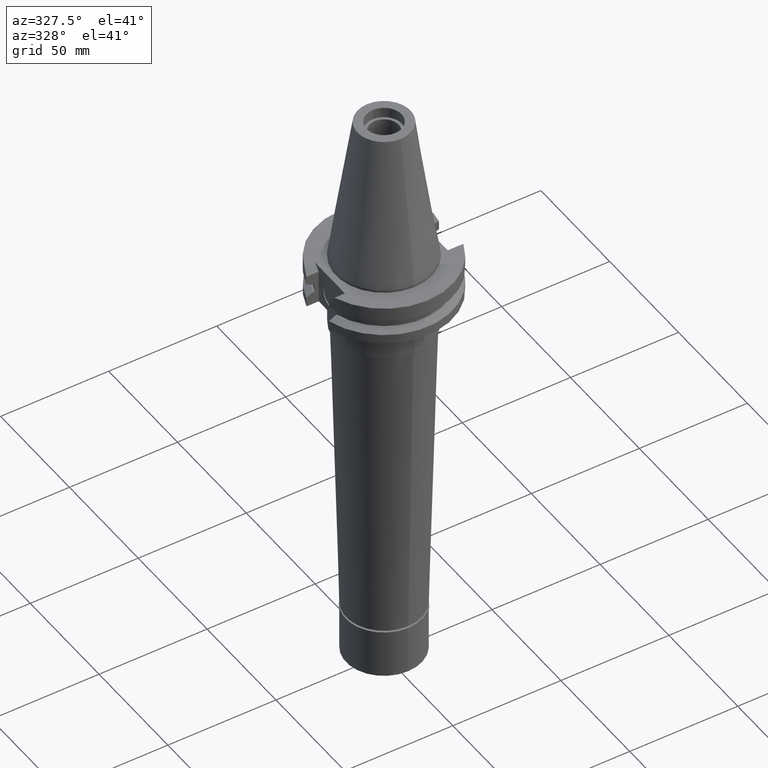
[diagram: clean part render]
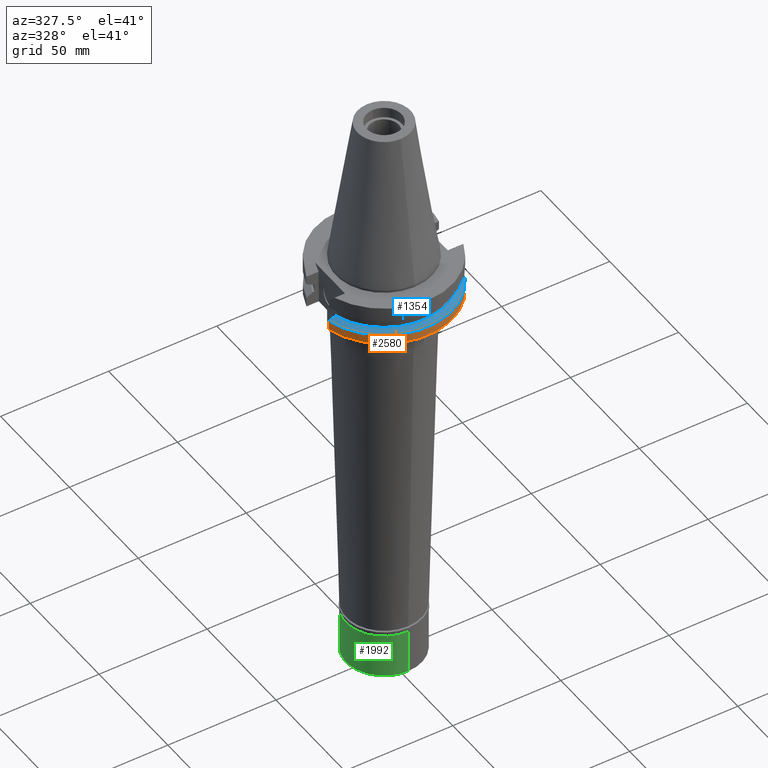
[diagram: same view with three faces highlighted in distinct colors, each labeled with its STEP entity id]
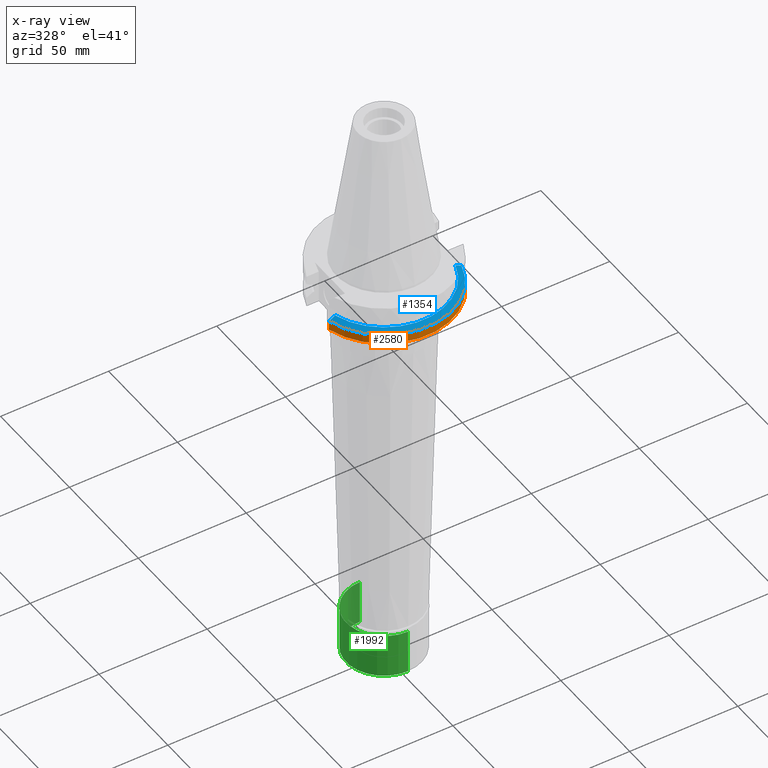
[diagram: x-ray of the same camera — body ghosted, the three highlighted faces saturated]
A machine part, auxiliary view with three faces highlighted in distinct colors.
The next image is the same camera in x-ray (body ghosted, the three faces saturated) — at least one of them is partly hidden behind the body in this view.
Their STEP definitions:

[orange] entity #2580 — the highlighted cylindrical surface (partial cylindrical patch) has radius 31.75 mm, axis along (0, 0, -1).
#172 = EDGE_CURVE ( 'NONE', #2984, #575, #335, .T. ) ;
#205 = DIRECTION ( 'NONE',  ( 0.0000000000000000000, -1.000000000000000000, 0.0000000000000000000 ) ) ;
#219 = EDGE_CURVE ( 'NONE', #601, #921, #1891, .T. ) ;
#335 = LINE ( 'NONE', #1908, #3172 ) ;
#575 = VERTEX_POINT ( 'NONE', #2897 ) ;
#601 = VERTEX_POINT ( 'NONE', #1334 ) ;
#791 = ORIENTED_EDGE ( 'NONE', *, *, #219, .F. ) ;
#813 = DIRECTION ( 'NONE',  ( -7.570527923222998574E-09, 2.835478449531998804E-08, 0.9999999999999996669 ) ) ;
#921 = VERTEX_POINT ( 'NONE', #2785 ) ;
#1091 = CARTESIAN_POINT ( 'NONE',  ( 0.0000000000000000000, 2.222580859602999833E-14, 81.48750000000001137 ) ) ;
#1108 = FACE_OUTER_BOUND ( 'NONE', #2510, .T. ) ;
#1334 = CARTESIAN_POINT ( 'NONE',  ( 30.67550146538999911, -8.190000601169000305, -14.65184201426000143 ) ) ;
#1569 = DIRECTION ( 'NONE',  ( 0.0000000000000000000, 0.0000000000000000000, -1.000000000000000000 ) ) ;
#1649 = EDGE_CURVE ( 'NONE', #601, #575, #3260, .T. ) ;
#1667 = ORIENTED_EDGE ( 'NONE', *, *, #1649, .T. ) ;
#1707 = AXIS2_PLACEMENT_3D ( 'NONE', #2080, #3146, #2890 ) ;
#1852 = CARTESIAN_POINT ( 'NONE',  ( -30.67550162588999640, -8.189999999999999503, -19.05000000000000071 ) ) ;
#1891 = LINE ( 'NONE', #2714, #2402 ) ;
#1908 = CARTESIAN_POINT ( 'NONE',  ( -30.67550162588999640, -8.189999999999999503, -19.05000000000000071 ) ) ;
#2080 = CARTESIAN_POINT ( 'NONE',  ( 0.0000000000000000000, 1.055021971275999843E-14, -14.65183664206000103 ) ) ;
#2229 = AXIS2_PLACEMENT_3D ( 'NONE', #2820, #2846, #205 ) ;
#2244 = ORIENTED_EDGE ( 'NONE', *, *, #172, .F. ) ;
#2271 = ORIENTED_EDGE ( 'NONE', *, *, #3362, .T. ) ;
#2285 = CIRCLE ( 'NONE', #2229, 31.75000000000000000 ) ;
#2402 = VECTOR ( 'NONE', #3192, 1000.000000000000000 ) ;
#2510 = EDGE_LOOP ( 'NONE', ( #1667, #2244, #2271, #791 ) ) ;
#2580 = ADVANCED_FACE ( 'NONE', ( #1108 ), #2695, .T. ) ;
#2695 = CYLINDRICAL_SURFACE ( 'NONE', #3323, 31.75000000000000000 ) ;
#2714 = CARTESIAN_POINT ( 'NONE',  ( 30.67550146538999911, -8.190000601169000305, -14.65184201426000143 ) ) ;
#2785 = CARTESIAN_POINT ( 'NONE',  ( 30.67550162588999640, -8.189999999999999503, -19.05000000000000071 ) ) ;
#2820 = CARTESIAN_POINT ( 'NONE',  ( 0.0000000000000000000, 2.222580859602999833E-14, -19.05000000000000071 ) ) ;
#2846 = DIRECTION ( 'NONE',  ( 0.0000000000000000000, 0.0000000000000000000, 1.000000000000000000 ) ) ;
#2890 = DIRECTION ( 'NONE',  ( 0.9661575315241073270, -0.2579527559055020958, 0.0000000000000000000 ) ) ;
#2897 = CARTESIAN_POINT ( 'NONE',  ( -30.67550165918999738, -8.189999875291000819, -14.65183552763999941 ) ) ;
#2984 = VERTEX_POINT ( 'NONE', #1852 ) ;
#3146 = DIRECTION ( 'NONE',  ( 0.0000000000000000000, 0.0000000000000000000, -1.000000000000000000 ) ) ;
#3161 = DIRECTION ( 'NONE',  ( 0.0000000000000000000, -1.000000000000000000, 0.0000000000000000000 ) ) ;
#3172 = VECTOR ( 'NONE', #813, 999.9999999999998863 ) ;
#3192 = DIRECTION ( 'NONE',  ( 3.649355016920928825E-08, 1.366864365606972220E-07, -0.9999999999999900080 ) ) ;
#3260 = CIRCLE ( 'NONE', #1707, 31.74999999999998579 ) ;
#3323 = AXIS2_PLACEMENT_3D ( 'NONE', #1091, #1569, #3161 ) ;
#3362 = EDGE_CURVE ( 'NONE', #2984, #921, #2285, .T. ) ;

[blue] entity #1354 — the highlighted conical surface has half-angle 60 deg.
#209 = CARTESIAN_POINT ( 'NONE',  ( 28.10738360850000106, -8.190000189174000411, -13.22356328903999945 ) ) ;
#258 = AXIS2_PLACEMENT_3D ( 'NONE', #1705, #728, #2767 ) ;
#357 = CARTESIAN_POINT ( 'NONE',  ( 0.0000000000000000000, 1.055021971275999843E-14, -13.85091832103000087 ) ) ;
#476 = AXIS2_PLACEMENT_3D ( 'NONE', #357, #1134, #2177 ) ;
#524 = CARTESIAN_POINT ( 'NONE',  ( 27.79398348484999914, -8.190000189174000411, -13.05000000000000071 ) ) ;
#572 = CARTESIAN_POINT ( 'NONE',  ( -27.79399588473999927, -8.189999365884000682, -13.05000000000000071 ) ) ;
#575 = VERTEX_POINT ( 'NONE', #2897 ) ;
#601 = VERTEX_POINT ( 'NONE', #1334 ) ;
#634 = CARTESIAN_POINT ( 'NONE',  ( -27.79399588473999927, -8.189999365884000682, -13.05000000000000071 ) ) ;
#673 = VERTEX_POINT ( 'NONE', #524 ) ;
#728 = DIRECTION ( 'NONE',  ( 0.0000000000000000000, 0.0000000000000000000, -1.000000000000000000 ) ) ;
#944 = CARTESIAN_POINT ( 'NONE',  ( 27.79398348484999914, -8.190000189174000411, -13.05000000000000071 ) ) ;
#960 = EDGE_CURVE ( 'NONE', #673, #1756, #2217, .T. ) ;
#1068 = ORIENTED_EDGE ( 'NONE', *, *, #1649, .F. ) ;
#1134 = DIRECTION ( 'NONE',  ( 0.0000000000000000000, 0.0000000000000000000, -1.000000000000000000 ) ) ;
#1237 = CARTESIAN_POINT ( 'NONE',  ( 30.67550146538999911, -8.190000601169000305, -14.65184201426000143 ) ) ;
#1258 = ORIENTED_EDGE ( 'NONE', *, *, #2835, .F. ) ;
#1273 = CARTESIAN_POINT ( 'NONE',  ( 29.69917587567000439, -8.189999744677999516, -14.10761604704000050 ) ) ;
#1334 = CARTESIAN_POINT ( 'NONE',  ( 30.67550146538999911, -8.190000601169000305, -14.65184201426000143 ) ) ;
#1354 = ADVANCED_FACE ( 'NONE', ( #2685 ), #2612, .T. ) ;
#1372 = CARTESIAN_POINT ( 'NONE',  ( -30.67550165918999738, -8.189999875291000819, -14.65183552763999941 ) ) ;
#1385 = CARTESIAN_POINT ( 'NONE',  ( -30.34855082270000182, -8.189999875291000819, -14.46945865233999839 ) ) ;
#1462 = ORIENTED_EDGE ( 'NONE', *, *, #3105, .F. ) ;
#1649 = EDGE_CURVE ( 'NONE', #601, #575, #3260, .T. ) ;
#1650 = CARTESIAN_POINT ( 'NONE',  ( -28.10738361698000176, -8.189999365884000682, -13.22355643114000046 ) ) ;
#1705 = CARTESIAN_POINT ( 'NONE',  ( 0.0000000000000000000, 1.055021971275999843E-14, -13.05000000000000071 ) ) ;
#1707 = AXIS2_PLACEMENT_3D ( 'NONE', #2080, #3146, #2890 ) ;
#1756 = VERTEX_POINT ( 'NONE', #572 ) ;
#1903 = CARTESIAN_POINT ( 'NONE',  ( -29.69917711244000103, -8.189999973648999898, -14.10761937372999952 ) ) ;
#2080 = CARTESIAN_POINT ( 'NONE',  ( 0.0000000000000000000, 1.055021971275999843E-14, -14.65183664206000103 ) ) ;
#2177 = DIRECTION ( 'NONE',  ( 0.0000000000000000000, -1.000000000000000000, 0.0000000000000000000 ) ) ;
#2217 = CIRCLE ( 'NONE', #258, 28.97553755052999946 ) ;
#2316 = ORIENTED_EDGE ( 'NONE', *, *, #960, .T. ) ;
#2469 = CARTESIAN_POINT ( 'NONE',  ( -28.73868617265000225, -8.190000279292998897, -13.57365332951999903 ) ) ;
#2612 = CONICAL_SURFACE ( 'NONE', #476, 30.36276877526999840, 1.047197551196400456 ) ;
#2623 = B_SPLINE_CURVE_WITH_KNOTS ( 'NONE', 3,
 ( #944, #209, #3081, #1273, #2851, #1237 ),
 .UNSPECIFIED., .F., .F.,
 ( 4, 1, 1, 4 ),
 ( 0.0000000000000000000, 0.3333333333333000081, 0.6666666666667000474, 1.000000000000000000 ),
 .UNSPECIFIED. ) ;
#2640 = EDGE_LOOP ( 'NONE', ( #1258, #2316, #1462, #1068 ) ) ;
#2685 = FACE_OUTER_BOUND ( 'NONE', #2640, .T. ) ;
#2767 = DIRECTION ( 'NONE',  ( 0.0000000000000000000, -1.000000000000000000, 0.0000000000000000000 ) ) ;
#2835 = EDGE_CURVE ( 'NONE', #673, #601, #2623, .T. ) ;
#2851 = CARTESIAN_POINT ( 'NONE',  ( 30.34854491561999978, -8.190000601169000305, -14.46946195547999992 ) ) ;
#2890 = DIRECTION ( 'NONE',  ( 0.9661575315241073270, -0.2579527559055020958, 0.0000000000000000000 ) ) ;
#2897 = CARTESIAN_POINT ( 'NONE',  ( -30.67550165918999738, -8.189999875291000819, -14.65183552763999941 ) ) ;
#2999 = B_SPLINE_CURVE_WITH_KNOTS ( 'NONE', 3,
 ( #1372, #1385, #1903, #2469, #1650, #634 ),
 .UNSPECIFIED., .F., .F.,
 ( 4, 1, 1, 4 ),
 ( 0.0000000000000000000, 0.3333333333333000081, 0.6666666666667000474, 1.000000000000000000 ),
 .UNSPECIFIED. ) ;
#3081 = CARTESIAN_POINT ( 'NONE',  ( 28.73868142374000101, -8.189999991875000163, -13.57364787836000097 ) ) ;
#3105 = EDGE_CURVE ( 'NONE', #575, #1756, #2999, .T. ) ;
#3146 = DIRECTION ( 'NONE',  ( 0.0000000000000000000, 0.0000000000000000000, -1.000000000000000000 ) ) ;
#3260 = CIRCLE ( 'NONE', #1707, 31.74999999999998579 ) ;

[green] entity #1992 — the highlighted cylindrical surface (partial cylindrical patch) has radius 17.5 mm, axis along (0, 0, -1).
#107 = ORIENTED_EDGE ( 'NONE', *, *, #3297, .F. ) ;
#129 = CARTESIAN_POINT ( 'NONE',  ( 0.0000000000000000000, 17.50000000000000000, -2.000000000000000000 ) ) ;
#131 = ORIENTED_EDGE ( 'NONE', *, *, #1666, .T. ) ;
#300 = CARTESIAN_POINT ( 'NONE',  ( 0.0000000000000000000, 17.50000000000000000, -2.000000000000000000 ) ) ;
#345 = ORIENTED_EDGE ( 'NONE', *, *, #2481, .T. ) ;
#540 = CARTESIAN_POINT ( 'NONE',  ( 0.0000000000000000000, 0.0000000000000000000, -2.000000000000000000 ) ) ;
#602 = VERTEX_POINT ( 'NONE', #2636 ) ;
#656 = CARTESIAN_POINT ( 'NONE',  ( 0.0000000000000000000, 0.0000000000000000000, 0.0000000000000000000 ) ) ;
#756 = CARTESIAN_POINT ( 'NONE',  ( 0.0000000000000000000, -17.50000000000000000, -2.000000000000000000 ) ) ;
#797 = VERTEX_POINT ( 'NONE', #129 ) ;
#805 = CARTESIAN_POINT ( 'NONE',  ( 0.0000000000000000000, 17.50000000000000000, -22.50000000000000000 ) ) ;
#828 = EDGE_CURVE ( 'NONE', #1049, #602, #1433, .T. ) ;
#891 = DIRECTION ( 'NONE',  ( 0.0000000000000000000, 0.0000000000000000000, 1.000000000000000000 ) ) ;
#992 = DIRECTION ( 'NONE',  ( 0.0000000000000000000, 0.0000000000000000000, -1.000000000000000000 ) ) ;
#1049 = VERTEX_POINT ( 'NONE', #805 ) ;
#1315 = DIRECTION ( 'NONE',  ( 0.0000000000000000000, -1.000000000000000000, 0.0000000000000000000 ) ) ;
#1344 = ORIENTED_EDGE ( 'NONE', *, *, #828, .T. ) ;
#1352 = CARTESIAN_POINT ( 'NONE',  ( 0.0000000000000000000, 0.0000000000000000000, -22.50000000000000000 ) ) ;
#1361 = LINE ( 'NONE', #300, #2827 ) ;
#1384 = AXIS2_PLACEMENT_3D ( 'NONE', #1352, #891, #1419 ) ;
#1419 = DIRECTION ( 'NONE',  ( 0.0000000000000000000, 1.000000000000000000, 0.0000000000000000000 ) ) ;
#1433 = CIRCLE ( 'NONE', #1384, 17.50000000000000000 ) ;
#1540 = VERTEX_POINT ( 'NONE', #756 ) ;
#1571 = DIRECTION ( 'NONE',  ( 0.0000000000000000000, 0.0000000000000000000, -1.000000000000000000 ) ) ;
#1666 = EDGE_CURVE ( 'NONE', #1540, #797, #2376, .T. ) ;
#1670 = CYLINDRICAL_SURFACE ( 'NONE', #2213, 17.50000000000000000 ) ;
#1716 = DIRECTION ( 'NONE',  ( 0.0000000000000000000, 0.0000000000000000000, -1.000000000000000000 ) ) ;
#1763 = CARTESIAN_POINT ( 'NONE',  ( 0.0000000000000000000, -17.50000000000000000, -2.000000000000000000 ) ) ;
#1783 = VECTOR ( 'NONE', #992, 1000.000000000000000 ) ;
#1838 = DIRECTION ( 'NONE',  ( 0.0000000000000000000, 0.0000000000000000000, -1.000000000000000000 ) ) ;
#1992 = ADVANCED_FACE ( 'NONE', ( #3012 ), #1670, .T. ) ;
#2213 = AXIS2_PLACEMENT_3D ( 'NONE', #656, #1716, #2760 ) ;
#2288 = EDGE_LOOP ( 'NONE', ( #1344, #107, #131, #345 ) ) ;
#2376 = CIRCLE ( 'NONE', #2764, 17.50000000000000000 ) ;
#2481 = EDGE_CURVE ( 'NONE', #797, #1049, #1361, .T. ) ;
#2544 = LINE ( 'NONE', #1763, #1783 ) ;
#2636 = CARTESIAN_POINT ( 'NONE',  ( 0.0000000000000000000, -17.50000000000000000, -22.50000000000000000 ) ) ;
#2760 = DIRECTION ( 'NONE',  ( 0.0000000000000000000, -1.000000000000000000, 0.0000000000000000000 ) ) ;
#2764 = AXIS2_PLACEMENT_3D ( 'NONE', #540, #1571, #1315 ) ;
#2827 = VECTOR ( 'NONE', #1838, 1000.000000000000000 ) ;
#3012 = FACE_OUTER_BOUND ( 'NONE', #2288, .T. ) ;
#3297 = EDGE_CURVE ( 'NONE', #1540, #602, #2544, .T. ) ;